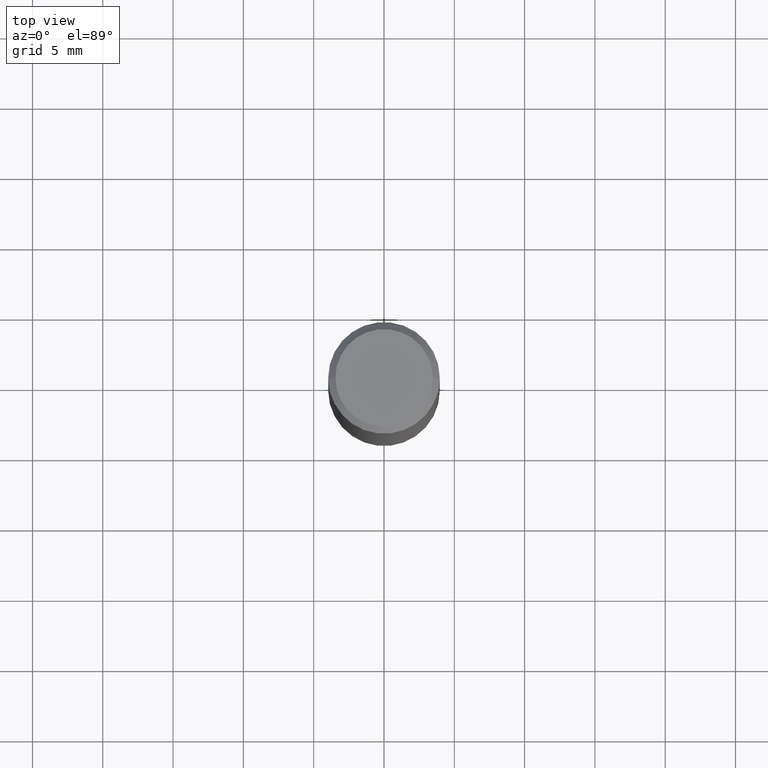
[diagram: clean part render]
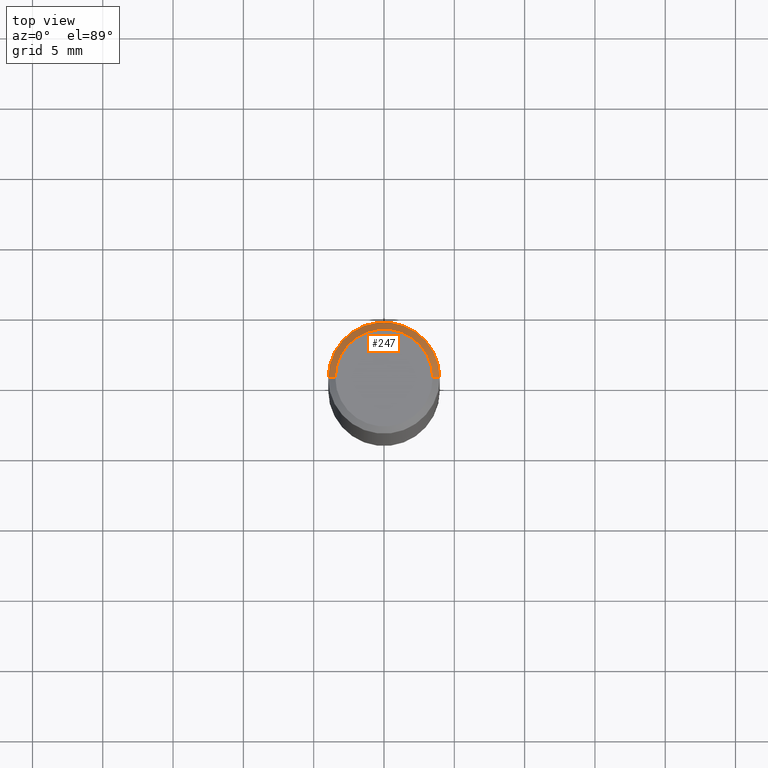
[diagram: same view with one face highlighted and labeled with its STEP entity id]
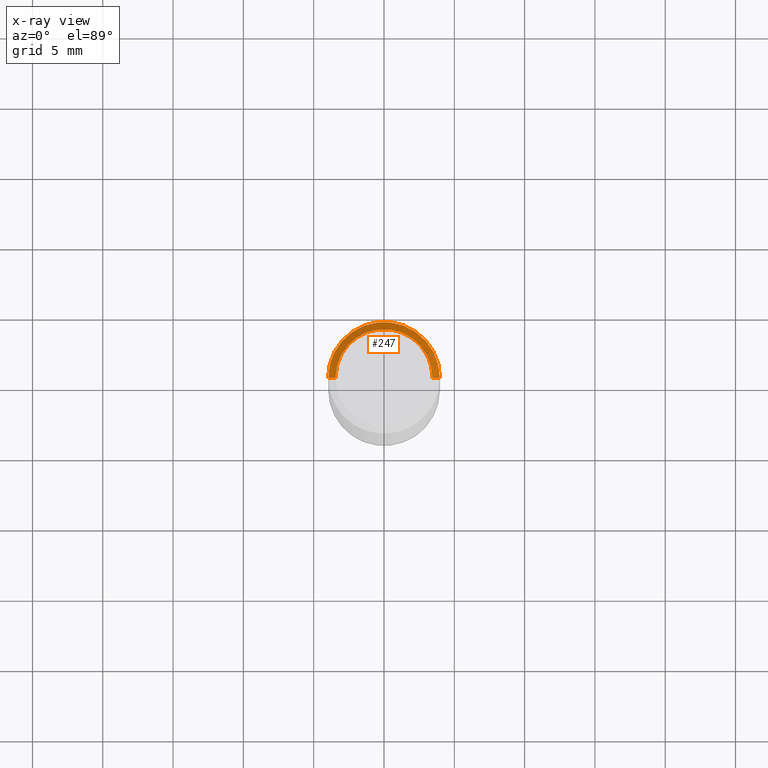
[diagram: x-ray of the same camera — body ghosted, the highlighted face saturated]
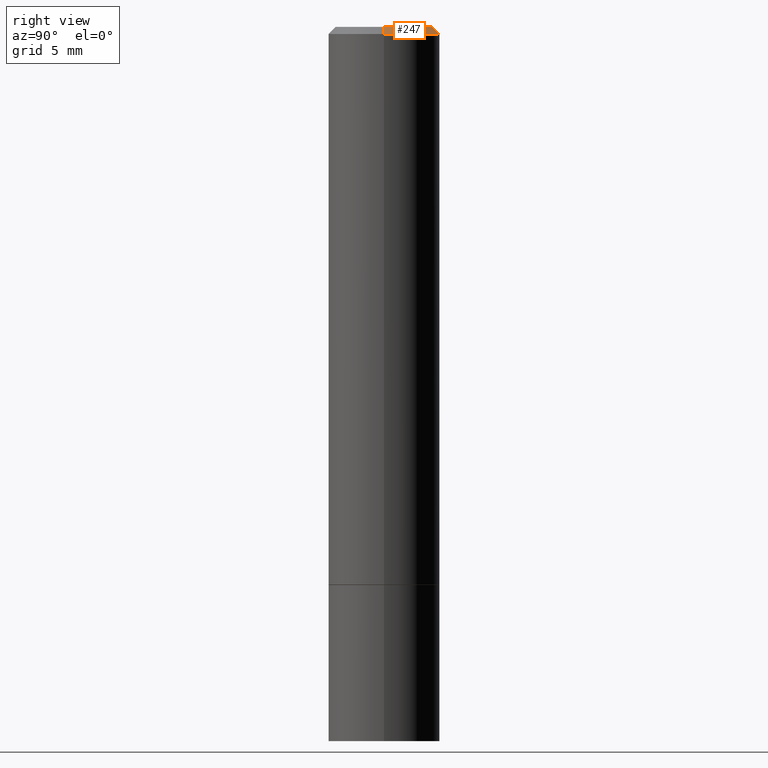
[diagram: same view with one face highlighted and labeled with its STEP entity id]
A machine part, top view. The second image highlights one B-rep face of the part: STEP entity #247.
The next image is the same camera in x-ray: the body ghosted, the highlighted face saturated — about 0% of this face is hidden behind the body in this view.
A second angle (right view) of the same face is appended — the face is thin or edge-on in the first view.
In plain terms, the highlighted conical surface has half-angle 45 deg.
Its self-contained STEP definition (entity closure, byte-faithful):
#4 = DIRECTION ( 'NONE',  ( -1.000000000000000000, 6.982962677686266711E-15, 0.000000000000000000 ) ) ;
#6 = CARTESIAN_POINT ( 'NONE',  ( -0.1562499999999998057, 1.021258291611614495E-15, -0.02000000000000008021 ) ) ;
#27 = EDGE_LOOP ( 'NONE', ( #57, #306, #85, #284 ) ) ;
#49 = DIRECTION ( 'NONE',  ( 1.000000000000000000, -6.982962677686266711E-15, 0.000000000000000000 ) ) ;
#57 = ORIENTED_EDGE ( 'NONE', *, *, #330, .F. ) ;
#59 = LINE ( 'NONE', #318, #230 ) ;
#61 = VERTEX_POINT ( 'NONE', #195 ) ;
#70 = AXIS2_PLACEMENT_3D ( 'NONE', #229, #332, #49 ) ;
#75 = EDGE_CURVE ( 'NONE', #212, #61, #328, .T. ) ;
#81 = DIRECTION ( 'NONE',  ( -0.7071067811865471286, 2.468850131082252722E-15, -0.7071067811865479058 ) ) ;
#85 = ORIENTED_EDGE ( 'NONE', *, *, #75, .T. ) ;
#92 = VERTEX_POINT ( 'NONE', #139 ) ;
#109 = CARTESIAN_POINT ( 'NONE',  ( -0.1362499999999997324, 9.863434782231834374E-16, -6.775751096333127272E-30 ) ) ;
#139 = CARTESIAN_POINT ( 'NONE',  ( 0.1362499999999997324, -1.038262645562516547E-15, 6.957025900226683865E-30 ) ) ;
#151 = CONICAL_SURFACE ( 'NONE', #191, 0.1562499999999998057, 0.7853981633974477239 ) ;
#158 = DIRECTION ( 'NONE',  ( -2.445468806185136597E-29, 3.491481338843145583E-15, 1.000000000000000000 ) ) ;
#185 = AXIS2_PLACEMENT_3D ( 'NONE', #302, #158, #354 ) ;
#188 = VERTEX_POINT ( 'NONE', #109 ) ;
#191 = AXIS2_PLACEMENT_3D ( 'NONE', #317, #319, #4 ) ;
#195 = CARTESIAN_POINT ( 'NONE',  ( -0.1562499999999998057, 1.021258291611614495E-15, -0.02000000000000008021 ) ) ;
#197 = EDGE_CURVE ( 'NONE', #188, #61, #205, .T. ) ;
#205 = LINE ( 'NONE', #6, #324 ) ;
#207 = CARTESIAN_POINT ( 'NONE',  ( 0.1562499999999998057, -1.141782438928663724E-15, -0.02000000000000008021 ) ) ;
#212 = VERTEX_POINT ( 'NONE', #207 ) ;
#229 = CARTESIAN_POINT ( 'NONE',  ( 4.890937612370293302E-31, -6.982962677686318726E-17, -0.02000000000000008021 ) ) ;
#230 = VECTOR ( 'NONE', #260, 39.37007874015748143 ) ;
#237 = FACE_OUTER_BOUND ( 'NONE', #27, .T. ) ;
#247 = ADVANCED_FACE ( 'NONE', ( #237 ), #151, .T. ) ;
#260 = DIRECTION ( 'NONE',  ( 0.7071067811865471286, -7.319954787623254468E-15, -0.7071067811865479058 ) ) ;
#284 = ORIENTED_EDGE ( 'NONE', *, *, #197, .F. ) ;
#287 = EDGE_CURVE ( 'NONE', #92, #212, #59, .T. ) ;
#292 = CIRCLE ( 'NONE', #185, 0.1362499999999997324 ) ;
#302 = CARTESIAN_POINT ( 'NONE',  ( 0.000000000000000000, 0.000000000000000000, 0.000000000000000000 ) ) ;
#306 = ORIENTED_EDGE ( 'NONE', *, *, #287, .T. ) ;
#317 = CARTESIAN_POINT ( 'NONE',  ( 4.890937612370293302E-31, -6.982962677686318726E-17, -0.02000000000000008021 ) ) ;
#318 = CARTESIAN_POINT ( 'NONE',  ( 0.1562499999999998057, -1.141782438928663724E-15, -0.02000000000000008021 ) ) ;
#319 = DIRECTION ( 'NONE',  ( 2.445468806185136597E-29, -3.491481338843145583E-15, -1.000000000000000000 ) ) ;
#324 = VECTOR ( 'NONE', #81, 39.37007874015748143 ) ;
#328 = CIRCLE ( 'NONE', #70, 0.1562499999999998057 ) ;
#330 = EDGE_CURVE ( 'NONE', #92, #188, #292, .T. ) ;
#332 = DIRECTION ( 'NONE',  ( -2.445468806185136597E-29, 3.491481338843145583E-15, 1.000000000000000000 ) ) ;
#354 = DIRECTION ( 'NONE',  ( 1.000000000000000000, -6.982962677686266711E-15, 4.876176775795936353E-29 ) ) ;